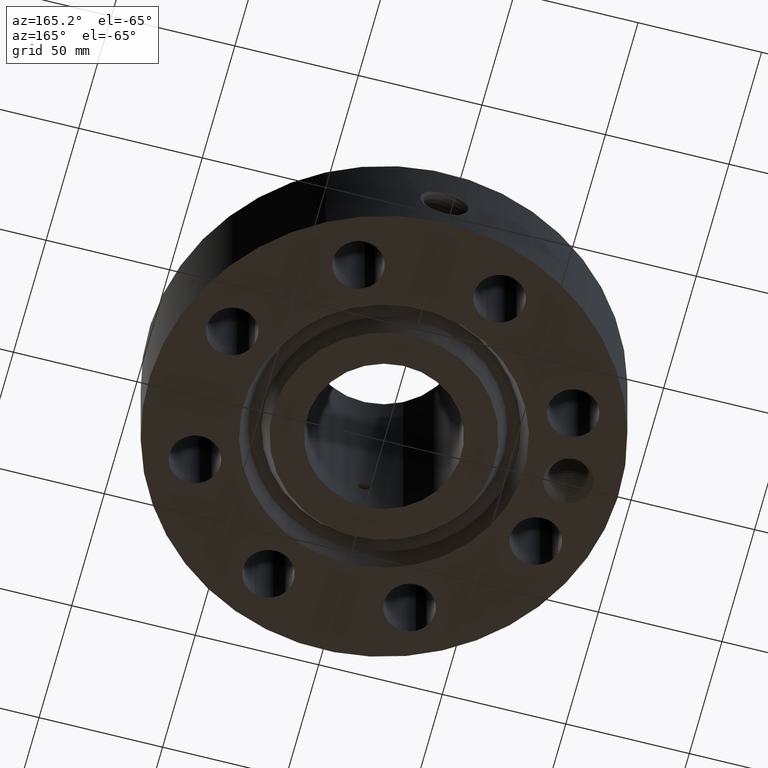
[diagram: clean part render]
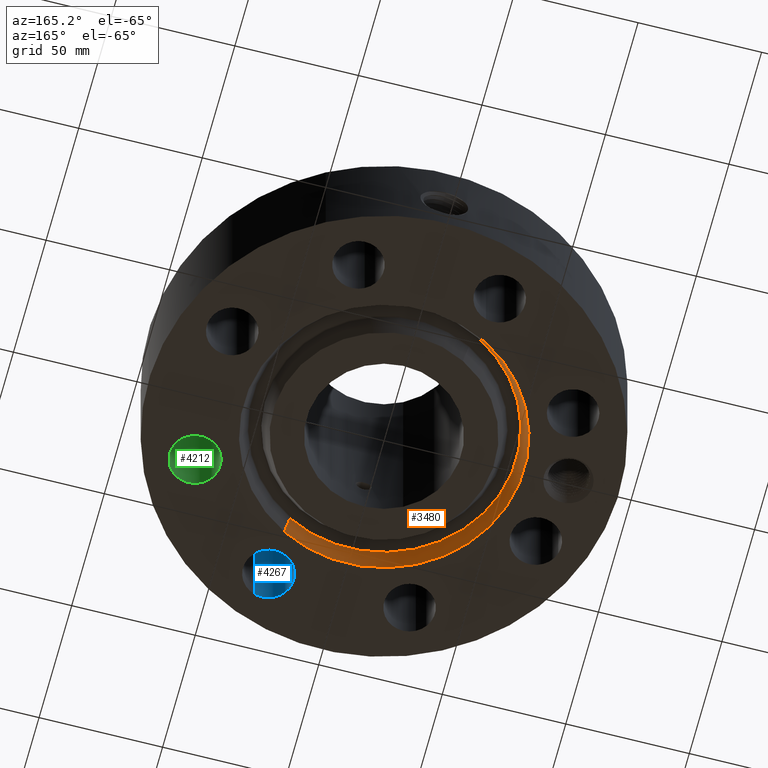
[diagram: same view with three faces highlighted in distinct colors, each labeled with its STEP entity id]
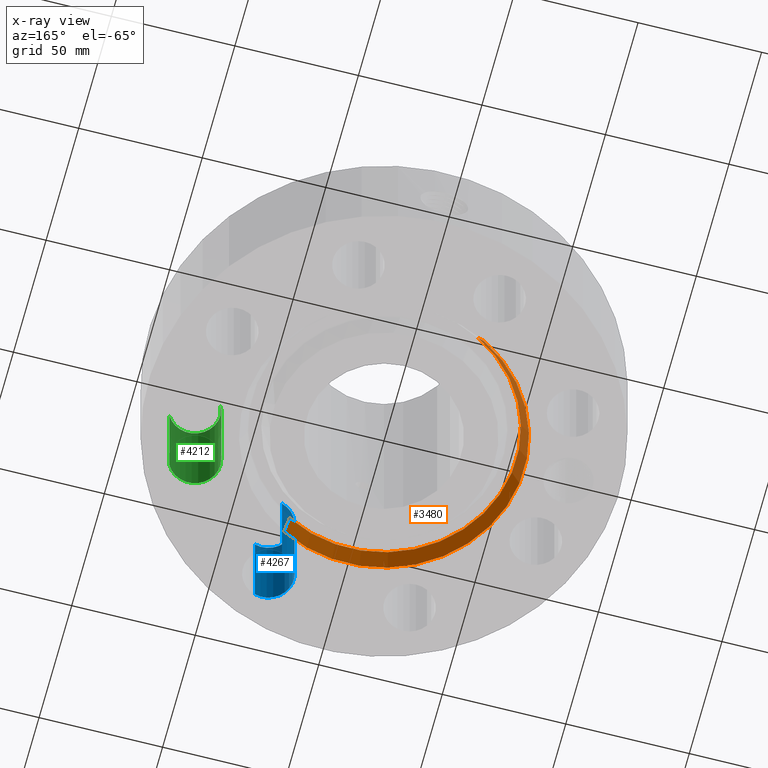
[diagram: x-ray of the same camera — body ghosted, the three highlighted faces saturated]
A machine part, auxiliary view with three faces highlighted in distinct colors.
The next image is the same camera in x-ray (body ghosted, the three faces saturated) — at least one of them is partly hidden behind the body in this view.
Their STEP definitions:

[orange] entity #3480 — the highlighted conical surface has half-angle 23 deg.
#2639=AXIS2_PLACEMENT_3D('Circle Axis2P3D',#2637,#2638,$) ;
#3441=AXIS2_PLACEMENT_3D('Cone Axis2P3D',#3438,#3439,#3440) ;
#3471=AXIS2_PLACEMENT_3D('Circle Axis2P3D',#3469,#3470,$) ;
#2615=CARTESIAN_POINT('Vertex',(1.01142324242,-1.85139782671,0.294112664984)) ;
#2617=CARTESIAN_POINT('Vertex',(-1.01142324242,1.85139782671,0.294112664984)) ;
#2637=CARTESIAN_POINT('Axis2P3D Location',(0.,0.,0.294112664984)) ;
#3438=CARTESIAN_POINT('Axis2P3D Location',(0.,0.,0.294112664984)) ;
#3447=CARTESIAN_POINT('Vertex',(-1.07127636602,1.96095823455,3.49676543189E-017)) ;
#3449=CARTESIAN_POINT('Vertex',(1.07127636602,-1.96095823455,3.49676543189E-017)) ;
#3452=CARTESIAN_POINT('Line Origine',(1.04134980422,-1.90617803063,0.147056332492)) ;
#3457=CARTESIAN_POINT('Line Origine',(-1.04134980422,1.90617803063,0.147056332492)) ;
#3469=CARTESIAN_POINT('Axis2P3D Location',(0.,0.,3.49676543189E-017)) ;
#2638=DIRECTION('Axis2P3D Direction',(0.,0.,0.0393700787402)) ;
#3439=DIRECTION('Axis2P3D Direction',(-0.,-0.,-0.0393700787402)) ;
#3440=DIRECTION('Axis2P3D XDirection',(0.0188750212049,-0.0345504945626,0.)) ;
#3453=DIRECTION('Vector Direction',(0.00737505833565,-0.0134999537303,-0.0362403485611)) ;
#3458=DIRECTION('Vector Direction',(-0.00737505833565,0.0134999537303,-0.0362403485611)) ;
#3470=DIRECTION('Axis2P3D Direction',(0.,0.,-0.0393700787402)) ;
#3454=VECTOR('Line Direction',#3453,0.0393700787402) ;
#3459=VECTOR('Line Direction',#3458,0.0393700787402) ;
#3475=ORIENTED_EDGE('',*,*,#3473,.T.) ;
#3476=ORIENTED_EDGE('',*,*,#3461,.T.) ;
#3477=ORIENTED_EDGE('',*,*,#2641,.T.) ;
#3478=ORIENTED_EDGE('',*,*,#3456,.F.) ;
#3480=ADVANCED_FACE('PartBody',(#3479),#3442,.F.) ;
#2640=CIRCLE('generated circle',#2639,2.10965658059) ;
#3472=CIRCLE('generated circle',#3471,2.23450000001) ;
#3442=CONICAL_SURFACE('Cone',#3441,2.10965658059,0.401425727959) ;
#2641=EDGE_CURVE('',#2618,#2616,#2640,.T.) ;
#3456=EDGE_CURVE('',#3450,#2616,#3455,.F.) ;
#3461=EDGE_CURVE('',#3448,#2618,#3460,.F.) ;
#3473=EDGE_CURVE('',#3450,#3448,#3472,.T.) ;
#3474=EDGE_LOOP('',(#3475,#3476,#3477,#3478)) ;
#3479=FACE_OUTER_BOUND('',#3474,.T.) ;
#3455=LINE('Line',#3452,#3454) ;
#3460=LINE('Line',#3457,#3459) ;
#2616=VERTEX_POINT('',#2615) ;
#2618=VERTEX_POINT('',#2617) ;
#3448=VERTEX_POINT('',#3447) ;
#3450=VERTEX_POINT('',#3449) ;

[blue] entity #4267 — the highlighted cylindrical surface (edge-blend (fillet) strip) has radius 10.287 mm, axis along (0, -0, -1).
#2981=AXIS2_PLACEMENT_3D('Circle Axis2P3D',#2979,#2980,$) ;
#4228=AXIS2_PLACEMENT_3D('Cylinder Axis2P3D',#4225,#4226,#4227) ;
#4258=AXIS2_PLACEMENT_3D('Circle Axis2P3D',#4256,#4257,$) ;
#2979=CARTESIAN_POINT('Axis2P3D Location',(1.12508929116,-2.71620582559,1.81300000001)) ;
#2983=CARTESIAN_POINT('Vertex',(1.23911280127,-3.10482342574,1.81300000001)) ;
#2985=CARTESIAN_POINT('Vertex',(1.01106578104,-2.32758822545,1.81300000001)) ;
#4225=CARTESIAN_POINT('Axis2P3D Location',(1.12508929116,-2.71620582559,1.80906299213)) ;
#4230=CARTESIAN_POINT('Line Origine',(1.01106578104,-2.32758822545,0.906500000004)) ;
#4234=CARTESIAN_POINT('Vertex',(1.01106578104,-2.32758822545,0.)) ;
#4241=CARTESIAN_POINT('Vertex',(1.23911280127,-3.10482342574,0.)) ;
#4244=CARTESIAN_POINT('Line Origine',(1.23911280127,-3.10482342574,0.906500000004)) ;
#4256=CARTESIAN_POINT('Axis2P3D Location',(1.12508929116,-2.71620582559,0.)) ;
#2980=DIRECTION('Axis2P3D Direction',(0.,0.,-0.0393700787402)) ;
#4226=DIRECTION('Axis2P3D Direction',(0.,-0.,-0.0393700787402)) ;
#4227=DIRECTION('Axis2P3D XDirection',(0.0110842335096,-0.0377775444876,0.)) ;
#4231=DIRECTION('Vector Direction',(0.,0.,-0.0393700787402)) ;
#4245=DIRECTION('Vector Direction',(0.,0.,-0.0393700787402)) ;
#4257=DIRECTION('Axis2P3D Direction',(0.,-0.,-0.0393700787402)) ;
#4232=VECTOR('Line Direction',#4231,0.0393700787402) ;
#4246=VECTOR('Line Direction',#4245,0.0393700787402) ;
#4262=ORIENTED_EDGE('',*,*,#4248,.F.) ;
#4263=ORIENTED_EDGE('',*,*,#4260,.T.) ;
#4264=ORIENTED_EDGE('',*,*,#4236,.T.) ;
#4265=ORIENTED_EDGE('',*,*,#2987,.F.) ;
#4267=ADVANCED_FACE('PartBody',(#4266),#4229,.F.) ;
#2982=CIRCLE('generated circle',#2981,0.405000000002) ;
#4259=CIRCLE('generated circle',#4258,0.405000000002) ;
#4229=CYLINDRICAL_SURFACE('generated cylinder',#4228,0.405000000002) ;
#2987=EDGE_CURVE('',#2984,#2986,#2982,.T.) ;
#4236=EDGE_CURVE('',#4235,#2986,#4233,.F.) ;
#4248=EDGE_CURVE('',#4242,#2984,#4247,.F.) ;
#4260=EDGE_CURVE('',#4242,#4235,#4259,.T.) ;
#4261=EDGE_LOOP('',(#4262,#4263,#4264,#4265)) ;
#4266=FACE_OUTER_BOUND('',#4261,.T.) ;
#4233=LINE('Line',#4230,#4232) ;
#4247=LINE('Line',#4244,#4246) ;
#2984=VERTEX_POINT('',#2983) ;
#2986=VERTEX_POINT('',#2985) ;
#4235=VERTEX_POINT('',#4234) ;
#4242=VERTEX_POINT('',#4241) ;

[green] entity #4212 — the highlighted cylindrical surface (edge-blend (fillet) strip) has radius 10.287 mm, axis along (0, -0, -1).
#2968=AXIS2_PLACEMENT_3D('Circle Axis2P3D',#2966,#2967,$) ;
#4185=AXIS2_PLACEMENT_3D('Cylinder Axis2P3D',#4182,#4183,#4184) ;
#4196=AXIS2_PLACEMENT_3D('Circle Axis2P3D',#4194,#4195,$) ;
#2961=CARTESIAN_POINT('Vertex',(2.36078488803,-0.930921948022,1.81300000001)) ;
#2963=CARTESIAN_POINT('Vertex',(3.07162676316,-1.31925663429,1.81300000001)) ;
#2966=CARTESIAN_POINT('Axis2P3D Location',(2.71620582559,-1.12508929116,1.81300000001)) ;
#4182=CARTESIAN_POINT('Axis2P3D Location',(2.71620582559,-1.12508929116,1.80906299213)) ;
#4187=CARTESIAN_POINT('Line Origine',(3.07162676316,-1.31925663429,0.906500000004)) ;
#4191=CARTESIAN_POINT('Vertex',(3.07162676316,-1.31925663429,0.)) ;
#4194=CARTESIAN_POINT('Axis2P3D Location',(2.71620582559,-1.12508929116,0.)) ;
#4198=CARTESIAN_POINT('Vertex',(2.36078488803,-0.930921948022,0.)) ;
#4201=CARTESIAN_POINT('Line Origine',(2.36078488803,-0.930921948022,0.906500000004)) ;
#2967=DIRECTION('Axis2P3D Direction',(0.,0.,-0.0393700787402)) ;
#4183=DIRECTION('Axis2P3D Direction',(0.,-0.,-0.0393700787402)) ;
#4184=DIRECTION('Axis2P3D XDirection',(-0.0345504945626,0.0188750212049,0.)) ;
#4188=DIRECTION('Vector Direction',(0.,0.,-0.0393700787402)) ;
#4195=DIRECTION('Axis2P3D Direction',(0.,-0.,-0.0393700787402)) ;
#4202=DIRECTION('Vector Direction',(0.,0.,-0.0393700787402)) ;
#4189=VECTOR('Line Direction',#4188,0.0393700787402) ;
#4203=VECTOR('Line Direction',#4202,0.0393700787402) ;
#4207=ORIENTED_EDGE('',*,*,#4193,.F.) ;
#4208=ORIENTED_EDGE('',*,*,#4200,.T.) ;
#4209=ORIENTED_EDGE('',*,*,#4205,.T.) ;
#4210=ORIENTED_EDGE('',*,*,#2970,.F.) ;
#4212=ADVANCED_FACE('PartBody',(#4211),#4186,.F.) ;
#2969=CIRCLE('generated circle',#2968,0.405000000002) ;
#4197=CIRCLE('generated circle',#4196,0.405000000002) ;
#4186=CYLINDRICAL_SURFACE('generated cylinder',#4185,0.405000000002) ;
#2970=EDGE_CURVE('',#2964,#2962,#2969,.T.) ;
#4193=EDGE_CURVE('',#4192,#2964,#4190,.F.) ;
#4200=EDGE_CURVE('',#4192,#4199,#4197,.T.) ;
#4205=EDGE_CURVE('',#4199,#2962,#4204,.F.) ;
#4206=EDGE_LOOP('',(#4207,#4208,#4209,#4210)) ;
#4211=FACE_OUTER_BOUND('',#4206,.T.) ;
#4190=LINE('Line',#4187,#4189) ;
#4204=LINE('Line',#4201,#4203) ;
#2962=VERTEX_POINT('',#2961) ;
#2964=VERTEX_POINT('',#2963) ;
#4192=VERTEX_POINT('',#4191) ;
#4199=VERTEX_POINT('',#4198) ;